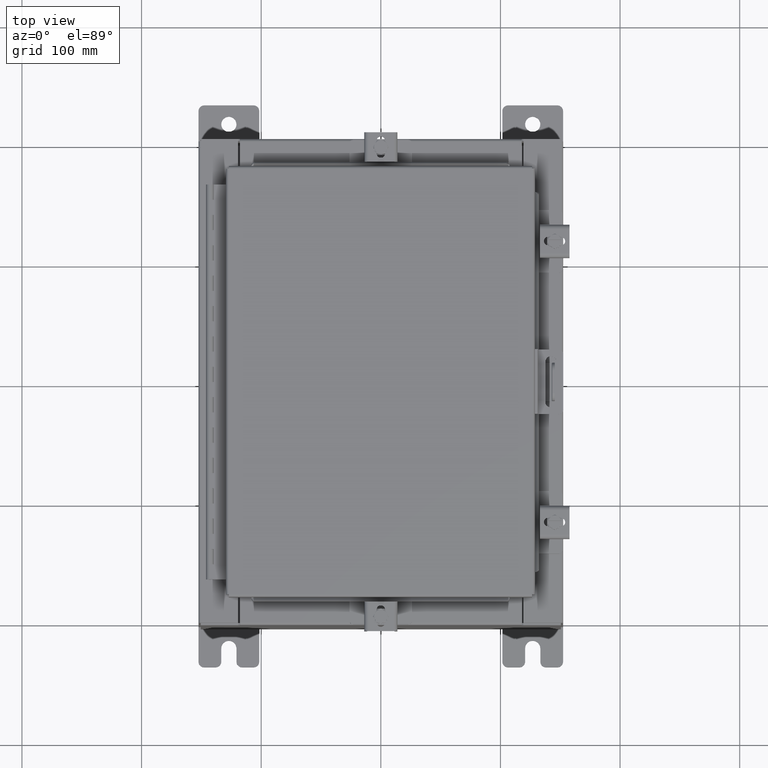
[diagram: clean part render]
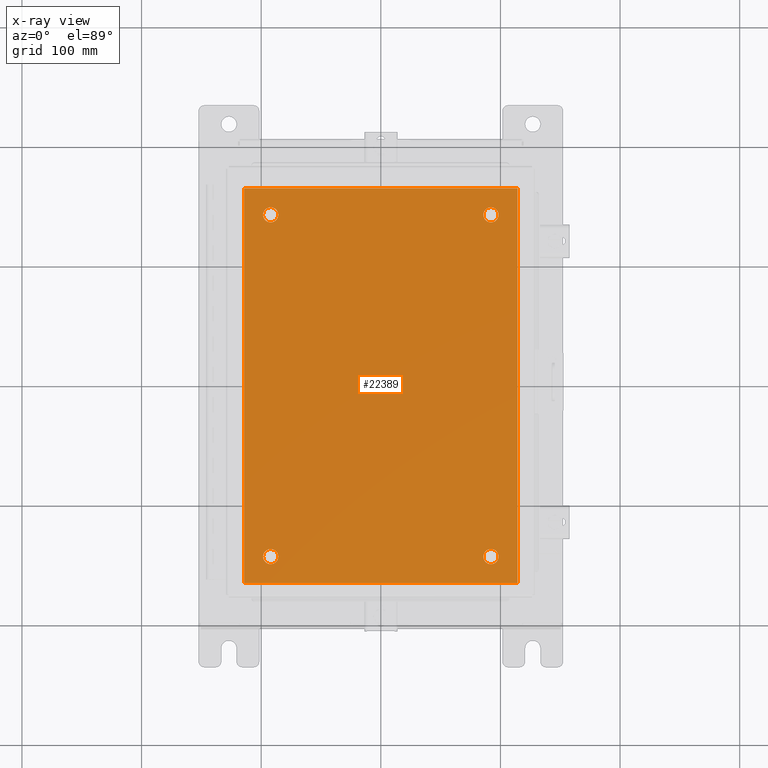
[diagram: x-ray — body ghosted, one internal face saturated and labeled with its STEP entity id]
A machine part, top view, then the same camera in x-ray: the body is ghosted and one INTERNAL B-rep face — a face not visible from any outside direction — is saturated and labeled: STEP entity #22389.
In plain terms, the highlighted planar face has unit normal (0, 0, -1).
Its self-contained STEP definition (entity closure, byte-faithful):
#224 = CARTESIAN_POINT ( 'NONE',  ( -3.875000000000000000, 5.625000000000003600, -0.1039999999999999800 ) ) ;
#475 = CARTESIAN_POINT ( 'NONE',  ( 3.874999999999999100, -5.625000000000003600, -0.1039999999999999800 ) ) ;
#547 = DIRECTION ( 'NONE',  ( -1.000000000000000000, 0.0000000000000000000, -0.0000000000000000000 ) ) ;
#590 = CARTESIAN_POINT ( 'NONE',  ( -4.499999999999998200, 6.500000000000000900, -0.1039999999999999800 ) ) ;
#666 = AXIS2_PLACEMENT_3D ( 'NONE', #10661, #24752, #12663 ) ;
#751 = CARTESIAN_POINT ( 'NONE',  ( 3.375000000000001800, 5.625000000000003600, -0.1039999999999999800 ) ) ;
#1110 = EDGE_CURVE ( 'NONE', #24897, #24293, #2672, .T. ) ;
#1461 = DIRECTION ( 'NONE',  ( -1.000000000000000000, 0.0000000000000000000, 0.0000000000000000000 ) ) ;
#1801 = DIRECTION ( 'NONE',  ( 1.000000000000000000, 0.0000000000000000000, 0.0000000000000000000 ) ) ;
#1870 = CARTESIAN_POINT ( 'NONE',  ( 3.874999999999999100, 5.625000000000003600, -0.1039999999999999800 ) ) ;
#2213 = VERTEX_POINT ( 'NONE', #4255 ) ;
#2215 = CARTESIAN_POINT ( 'NONE',  ( 4.500000000000001800, -6.499999999999999100, -0.1039999999999999800 ) ) ;
#2219 = FACE_BOUND ( 'NONE', #19851, .T. ) ;
#2239 = DIRECTION ( 'NONE',  ( -0.0000000000000000000, -0.0000000000000000000, 1.000000000000000000 ) ) ;
#2549 = VERTEX_POINT ( 'NONE', #751 ) ;
#2626 = DIRECTION ( 'NONE',  ( -0.0000000000000000000, -0.0000000000000000000, 1.000000000000000000 ) ) ;
#2672 = CIRCLE ( 'NONE', #23852, 0.2499999999999998100 ) ;
#2698 = CIRCLE ( 'NONE', #23934, 0.2499999999999987000 ) ;
#3496 = ORIENTED_EDGE ( 'NONE', *, *, #18249, .T. ) ;
#3541 = CIRCLE ( 'NONE', #10133, 0.2499999999999987000 ) ;
#3554 = EDGE_CURVE ( 'NONE', #22239, #16585, #3829, .T. ) ;
#3768 = DIRECTION ( 'NONE',  ( -0.0000000000000000000, -1.000000000000000000, -0.0000000000000000000 ) ) ;
#3829 = CIRCLE ( 'NONE', #15691, 0.2499999999999987000 ) ;
#3832 = DIRECTION ( 'NONE',  ( -0.0000000000000000000, -0.0000000000000000000, 1.000000000000000000 ) ) ;
#3883 = LINE ( 'NONE', #9824, #7956 ) ;
#3969 = CARTESIAN_POINT ( 'NONE',  ( 3.625000000000000400, -5.625000000000003600, -0.1039999999999999800 ) ) ;
#4248 = DIRECTION ( 'NONE',  ( 0.0000000000000000000, 1.000000000000000000, 0.0000000000000000000 ) ) ;
#4255 = CARTESIAN_POINT ( 'NONE',  ( -4.499999999999998200, -6.499999999999999100, -0.1039999999999999800 ) ) ;
#4407 = DIRECTION ( 'NONE',  ( -0.0000000000000000000, -0.0000000000000000000, 1.000000000000000000 ) ) ;
#4494 = CARTESIAN_POINT ( 'NONE',  ( 0.0000000000000000000, 0.0000000000000000000, -0.1039999999999999800 ) ) ;
#4662 = CARTESIAN_POINT ( 'NONE',  ( -3.625000000000000400, -5.625000000000003600, -0.1039999999999999800 ) ) ;
#5168 = ORIENTED_EDGE ( 'NONE', *, *, #13072, .T. ) ;
#5257 = CARTESIAN_POINT ( 'NONE',  ( 4.500000000000001800, -6.499999999999999100, -0.1039999999999999800 ) ) ;
#5479 = VERTEX_POINT ( 'NONE', #224 ) ;
#5967 = DIRECTION ( 'NONE',  ( -1.000000000000000000, 0.0000000000000000000, 0.0000000000000000000 ) ) ;
#6449 = VECTOR ( 'NONE', #6722, 39.37007874015748100 ) ;
#6544 = EDGE_CURVE ( 'NONE', #16585, #22239, #24173, .T. ) ;
#6722 = DIRECTION ( 'NONE',  ( -1.000000000000000000, -0.0000000000000000000, -0.0000000000000000000 ) ) ;
#6753 = DIRECTION ( 'NONE',  ( -1.000000000000000000, 0.0000000000000000000, 0.0000000000000000000 ) ) ;
#7094 = LINE ( 'NONE', #590, #6449 ) ;
#7596 = FACE_BOUND ( 'NONE', #23591, .T. ) ;
#7956 = VECTOR ( 'NONE', #3768, 39.37007874015748100 ) ;
#8203 = CIRCLE ( 'NONE', #14784, 0.2499999999999998100 ) ;
#8633 = ORIENTED_EDGE ( 'NONE', *, *, #13288, .F. ) ;
#8999 = ORIENTED_EDGE ( 'NONE', *, *, #19459, .F. ) ;
#9555 = ORIENTED_EDGE ( 'NONE', *, *, #23469, .F. ) ;
#9824 = CARTESIAN_POINT ( 'NONE',  ( -4.499999999999998200, -6.499999999999999100, -0.1039999999999999800 ) ) ;
#9877 = VERTEX_POINT ( 'NONE', #17856 ) ;
#9960 = CARTESIAN_POINT ( 'NONE',  ( 3.625000000000000400, 5.625000000000003600, -0.1039999999999999800 ) ) ;
#10133 = AXIS2_PLACEMENT_3D ( 'NONE', #9960, #24037, #11979 ) ;
#10661 = CARTESIAN_POINT ( 'NONE',  ( -3.625000000000000400, 5.625000000000003600, -0.1039999999999999800 ) ) ;
#11722 = EDGE_LOOP ( 'NONE', ( #3496, #22047 ) ) ;
#11979 = DIRECTION ( 'NONE',  ( -1.000000000000000000, 0.0000000000000000000, 0.0000000000000000000 ) ) ;
#12213 = EDGE_CURVE ( 'NONE', #5479, #21803, #25723, .T. ) ;
#12554 = DIRECTION ( 'NONE',  ( 0.0000000000000000000, 0.0000000000000000000, -1.000000000000000000 ) ) ;
#12645 = CARTESIAN_POINT ( 'NONE',  ( -3.375000000000000400, -5.625000000000003600, -0.1039999999999999800 ) ) ;
#12663 = DIRECTION ( 'NONE',  ( -1.000000000000000000, 0.0000000000000000000, 0.0000000000000000000 ) ) ;
#13051 = VECTOR ( 'NONE', #4248, 39.37007874015748100 ) ;
#13072 = EDGE_CURVE ( 'NONE', #2549, #18290, #2698, .T. ) ;
#13288 = EDGE_CURVE ( 'NONE', #19094, #15379, #23779, .T. ) ;
#13322 = ORIENTED_EDGE ( 'NONE', *, *, #16504, .T. ) ;
#13478 = DIRECTION ( 'NONE',  ( -0.0000000000000000000, -0.0000000000000000000, 1.000000000000000000 ) ) ;
#13635 = ORIENTED_EDGE ( 'NONE', *, *, #22346, .T. ) ;
#13821 = CARTESIAN_POINT ( 'NONE',  ( -4.499999999999998200, -6.499999999999999100, -0.1039999999999999800 ) ) ;
#14266 = CARTESIAN_POINT ( 'NONE',  ( 3.625000000000000400, -5.625000000000003600, -0.1039999999999999800 ) ) ;
#14585 = AXIS2_PLACEMENT_3D ( 'NONE', #14266, #2239, #16279 ) ;
#14784 = AXIS2_PLACEMENT_3D ( 'NONE', #16411, #4407, #18453 ) ;
#15334 = ORIENTED_EDGE ( 'NONE', *, *, #1110, .T. ) ;
#15379 = VERTEX_POINT ( 'NONE', #15768 ) ;
#15691 = AXIS2_PLACEMENT_3D ( 'NONE', #3969, #18001, #5967 ) ;
#15761 = ORIENTED_EDGE ( 'NONE', *, *, #21078, .F. ) ;
#15768 = CARTESIAN_POINT ( 'NONE',  ( 4.500000000000001800, 6.500000000000000900, -0.1039999999999999800 ) ) ;
#15825 = CARTESIAN_POINT ( 'NONE',  ( -3.625000000000000400, 5.625000000000003600, -0.1039999999999999800 ) ) ;
#15990 = CARTESIAN_POINT ( 'NONE',  ( 3.375000000000001800, -5.625000000000003600, -0.1039999999999999800 ) ) ;
#16279 = DIRECTION ( 'NONE',  ( -1.000000000000000000, 0.0000000000000000000, 0.0000000000000000000 ) ) ;
#16342 = CARTESIAN_POINT ( 'NONE',  ( -3.375000000000000400, 5.625000000000003600, -0.1039999999999999800 ) ) ;
#16411 = CARTESIAN_POINT ( 'NONE',  ( -3.625000000000000400, -5.625000000000003600, -0.1039999999999999800 ) ) ;
#16504 = EDGE_CURVE ( 'NONE', #18290, #2549, #3541, .T. ) ;
#16514 = ORIENTED_EDGE ( 'NONE', *, *, #3554, .T. ) ;
#16585 = VERTEX_POINT ( 'NONE', #475 ) ;
#16925 = CARTESIAN_POINT ( 'NONE',  ( -3.875000000000000000, -5.625000000000003600, -0.1039999999999999800 ) ) ;
#17159 = CIRCLE ( 'NONE', #23827, 0.2499999999999998100 ) ;
#17632 = FACE_OUTER_BOUND ( 'NONE', #19416, .T. ) ;
#17856 = CARTESIAN_POINT ( 'NONE',  ( -4.499999999999998200, 6.500000000000000900, -0.1039999999999999800 ) ) ;
#17864 = DIRECTION ( 'NONE',  ( -1.000000000000000000, 0.0000000000000000000, 0.0000000000000000000 ) ) ;
#18001 = DIRECTION ( 'NONE',  ( -0.0000000000000000000, -0.0000000000000000000, 1.000000000000000000 ) ) ;
#18249 = EDGE_CURVE ( 'NONE', #21803, #5479, #17159, .T. ) ;
#18290 = VERTEX_POINT ( 'NONE', #1870 ) ;
#18453 = DIRECTION ( 'NONE',  ( -1.000000000000000000, 0.0000000000000000000, 0.0000000000000000000 ) ) ;
#18506 = EDGE_LOOP ( 'NONE', ( #13322, #5168 ) ) ;
#18538 = PLANE ( 'NONE',  #24255 ) ;
#19094 = VERTEX_POINT ( 'NONE', #5257 ) ;
#19416 = EDGE_LOOP ( 'NONE', ( #8633, #9555, #15761, #8999 ) ) ;
#19459 = EDGE_CURVE ( 'NONE', #15379, #9877, #7094, .T. ) ;
#19518 = FACE_BOUND ( 'NONE', #18506, .T. ) ;
#19851 = EDGE_LOOP ( 'NONE', ( #23225, #16514 ) ) ;
#21078 = EDGE_CURVE ( 'NONE', #9877, #2213, #3883, .T. ) ;
#21661 = LINE ( 'NONE', #13821, #22290 ) ;
#21803 = VERTEX_POINT ( 'NONE', #16342 ) ;
#22047 = ORIENTED_EDGE ( 'NONE', *, *, #12213, .T. ) ;
#22239 = VERTEX_POINT ( 'NONE', #15990 ) ;
#22290 = VECTOR ( 'NONE', #1801, 39.37007874015748100 ) ;
#22346 = EDGE_CURVE ( 'NONE', #24293, #24897, #8203, .T. ) ;
#22389 = ADVANCED_FACE ( 'NONE', ( #7596, #2219, #19518, #22982, #17632 ), #18538, .T. ) ;
#22982 = FACE_BOUND ( 'NONE', #11722, .T. ) ;
#23225 = ORIENTED_EDGE ( 'NONE', *, *, #6544, .T. ) ;
#23469 = EDGE_CURVE ( 'NONE', #2213, #19094, #21661, .T. ) ;
#23591 = EDGE_LOOP ( 'NONE', ( #13635, #15334 ) ) ;
#23779 = LINE ( 'NONE', #2215, #13051 ) ;
#23827 = AXIS2_PLACEMENT_3D ( 'NONE', #15825, #3832, #17864 ) ;
#23852 = AXIS2_PLACEMENT_3D ( 'NONE', #4662, #2626, #6753 ) ;
#23934 = AXIS2_PLACEMENT_3D ( 'NONE', #25553, #13478, #1461 ) ;
#24037 = DIRECTION ( 'NONE',  ( -0.0000000000000000000, -0.0000000000000000000, 1.000000000000000000 ) ) ;
#24173 = CIRCLE ( 'NONE', #14585, 0.2499999999999987000 ) ;
#24255 = AXIS2_PLACEMENT_3D ( 'NONE', #4494, #12554, #547 ) ;
#24293 = VERTEX_POINT ( 'NONE', #12645 ) ;
#24752 = DIRECTION ( 'NONE',  ( -0.0000000000000000000, -0.0000000000000000000, 1.000000000000000000 ) ) ;
#24897 = VERTEX_POINT ( 'NONE', #16925 ) ;
#25553 = CARTESIAN_POINT ( 'NONE',  ( 3.625000000000000400, 5.625000000000003600, -0.1039999999999999800 ) ) ;
#25723 = CIRCLE ( 'NONE', #666, 0.2499999999999998100 ) ;